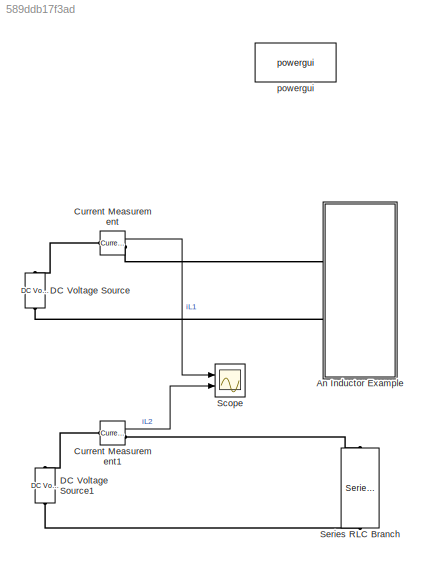
MODEL slx_589ddb17f3ad
KIND model
CONFIG AbsTol = auto
CONFIG EnableMultiTasking = off
CONFIG FixedStep = auto
CONFIG MaxStep = auto
CONFIG MinStep = auto
CONFIG RelTol = 1e-3
CONFIG SampleTimeConstraint = Unconstrained
CONFIG SolverName = VariableStepAuto
CONFIG StartTime = 0.0
CONFIG StopTime = 1
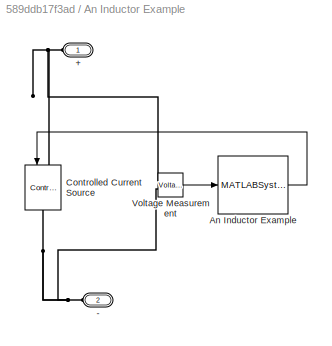
BLOCK [SubSystem] An Inductor Example
  Ports = [0, 0, 0, 0, 0, 2]
  RequestExecContextInheritance = off
BLOCK [PMIOPort] An Inductor Example/+
  NameLocation = top
  Side = Left
BLOCK [PMIOPort] An Inductor Example/-
  NameLocation = top
  Port = 2
  Side = Left
BLOCK [MATLABSystem] An Inductor Example/An Inductor Example
  DeviceType = 0
  DirectFeedthrough = true
  DiscreMethod = 2
  EquiInitial = true
  LinearizationTimes = 1
  MaskDisplay = disp('Inductor');\nport_label('input',1,'u');\nport_label('output',1,'y');
  MaskType = SimplexPS.Class.Inductor
  Para = L
  Ports = [1, 1]
  PowerFlow = 0
  SimulateUsing = Code generation
  System = SimplexPS.Class.Inductor
  Ts = Ts
  VirtualResistor = true
  x0 = 0
BLOCK [Reference] An Inductor Example/Controlled Current Source  REF=powerlib/Electrical
Sources/Controlled Current Source
  NameLocation = left
  Ports = [1, 0, 0, 0, 0, 1, 1]
  SourceBlock = powerlib/Electrical\nSources/Controlled Current Source
  SourceProductBaseCode = PS
  SourceType = Controlled Current Source
BLOCK [Reference] An Inductor Example/Voltage Measurement  REF=powerlib/Measurements/Voltage Measurement
  Ports = [0, 1, 0, 0, 0, 2]
  SourceBlock = powerlib/Measurements/Voltage Measurement
  SourceProductBaseCode = PS
  SourceType = Voltage Measurement
  UserDataPersistent = on
BLOCK [Reference] Current Measurement  REF=powerlib/Measurements/Current Measurement
  Ports = [0, 1, 0, 0, 0, 1, 1]
  SourceBlock = powerlib/Measurements/Current Measurement
  SourceProductBaseCode = PS
  SourceType = Current Measurement
  UserDataPersistent = on
BLOCK [Reference] Current Measurement1  REF=powerlib/Measurements/Current Measurement
  Ports = [0, 1, 0, 0, 0, 1, 1]
  SourceBlock = powerlib/Measurements/Current Measurement
  SourceProductBaseCode = PS
  SourceType = Current Measurement
  UserDataPersistent = on
BLOCK [Reference] DC Voltage Source  REF=powerlib/Electrical
Sources/DC Voltage Source
  NameLocation = right
  Ports = [0, 0, 0, 0, 0, 1, 1]
  SourceBlock = powerlib/Electrical\nSources/DC Voltage Source
  SourceProductBaseCode = PS
  SourceType = DC Voltage Source
BLOCK [Reference] DC Voltage Source1  REF=powerlib/Electrical
Sources/DC Voltage Source
  NameLocation = right
  Ports = [0, 0, 0, 0, 0, 1, 1]
  SourceBlock = powerlib/Electrical\nSources/DC Voltage Source
  SourceProductBaseCode = PS
  SourceType = DC Voltage Source
BLOCK [Scope] Scope
  Floating = off
  NumInputPorts = 2
  Ports = [2]
  ScopeSpecificationString = Simulink.scopes.TimeScopeBlockCfg('CurrentConfiguration', extmgr.ConfigurationSet(extmgr.Configuration('Core','General UI',true),extmgr.Configuration('Core','Source UI',true),extmgr.Configuration('Sources','WiredSimulink',true),extmgr.Configuration('Visuals','Time Domain',true,'SerializedDisplays',{struct('MinYLimReal','-0.0625','MaxYLimReal','0.5625','YLabelReal','','MinYLimMag','0.00000','MaxYLi...<+1917ch>
BLOCK [Reference] Series RLC Branch  REF=powerlib/Elements/Series RLC Branch
  NameLocation = left
  Ports = [0, 0, 0, 0, 0, 1, 1]
  SourceBlock = powerlib/Elements/Series RLC Branch
  SourceProductBaseCode = PS
  SourceType = Series RLC Branch
BLOCK [Reference] powergui  REF=powerlib/powergui
  Ports = []
  Priority = 1
  SourceBlock = powerlib/powergui
  SourceProductBaseCode = PS
  SourceType = PSB option menu block
LINE An Inductor Example/An Inductor Example:1 -> An Inductor Example/Controlled Current Source:1
LINE An Inductor Example/Voltage Measurement:1 -> An Inductor Example/An Inductor Example:1
LINE Current Measurement1:1 -> Scope:2
LINE Current Measurement:1 -> Scope:1
PNET net1: An Inductor Example/+:RConn1 -- An Inductor Example/Controlled Current Source:LConn1 -- An Inductor Example/Voltage Measurement:LConn1
PNET net2: An Inductor Example/-:RConn1 -- An Inductor Example/Controlled Current Source:RConn1 -- An Inductor Example/Voltage Measurement:LConn2
PLINE An Inductor Example:LConn1 -- Current Measurement:RConn1
PLINE An Inductor Example:LConn2 -- DC Voltage Source:LConn1
PLINE Current Measurement1:LConn1 -- DC Voltage Source1:RConn1
PLINE Current Measurement1:RConn1 -- Series RLC Branch:LConn1
PLINE Current Measurement:LConn1 -- DC Voltage Source:RConn1
PLINE DC Voltage Source1:LConn1 -- Series RLC Branch:RConn1
note: PNET lines group multi-terminal physical nets as a canonical sorted terminal list (undirected conserving connections); 2-terminal nets keep the pairwise PLINE form
